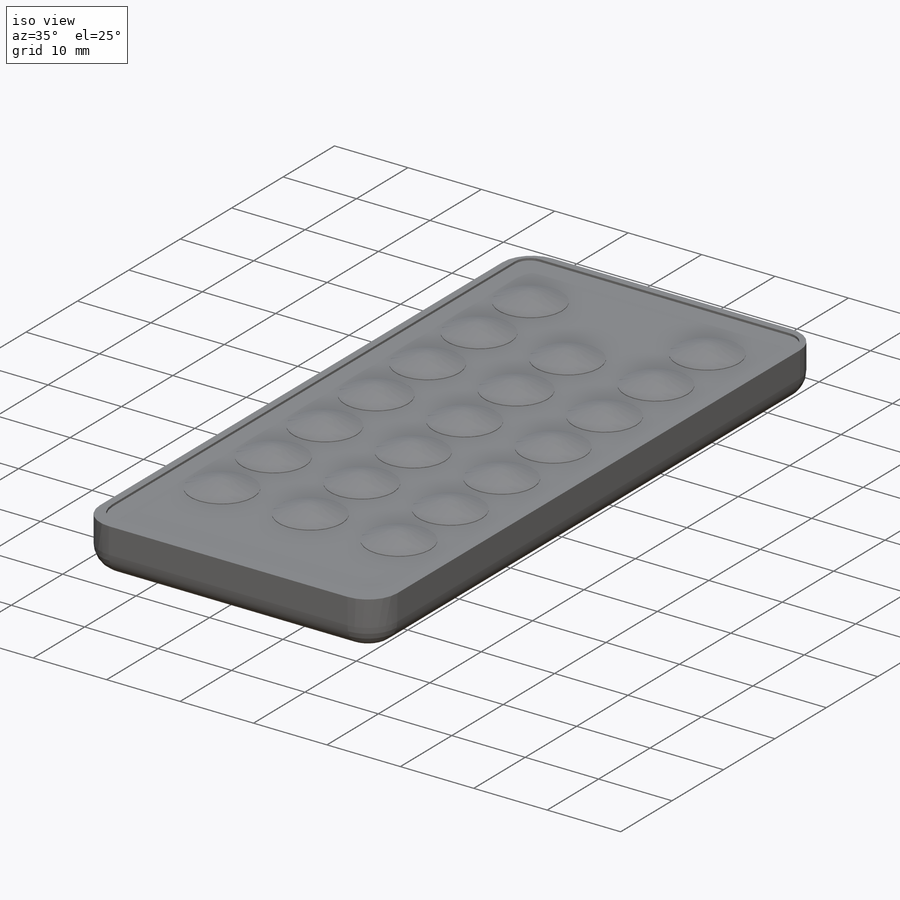
[diagram: iso view]
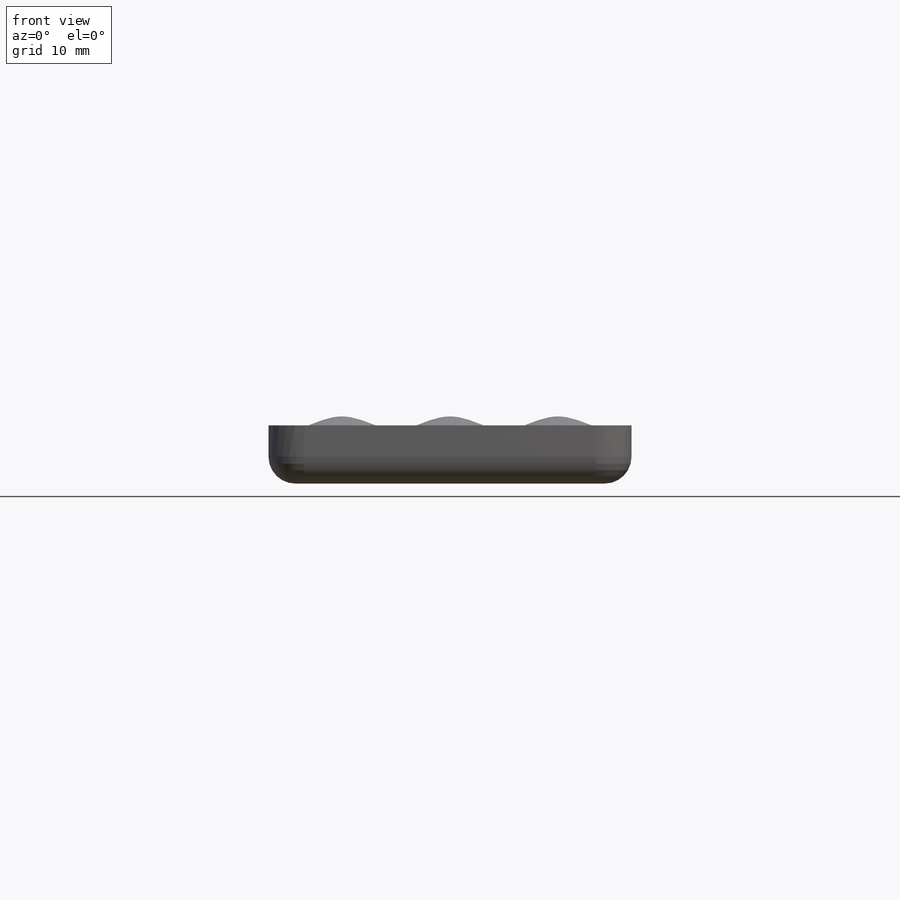
[diagram: front view]
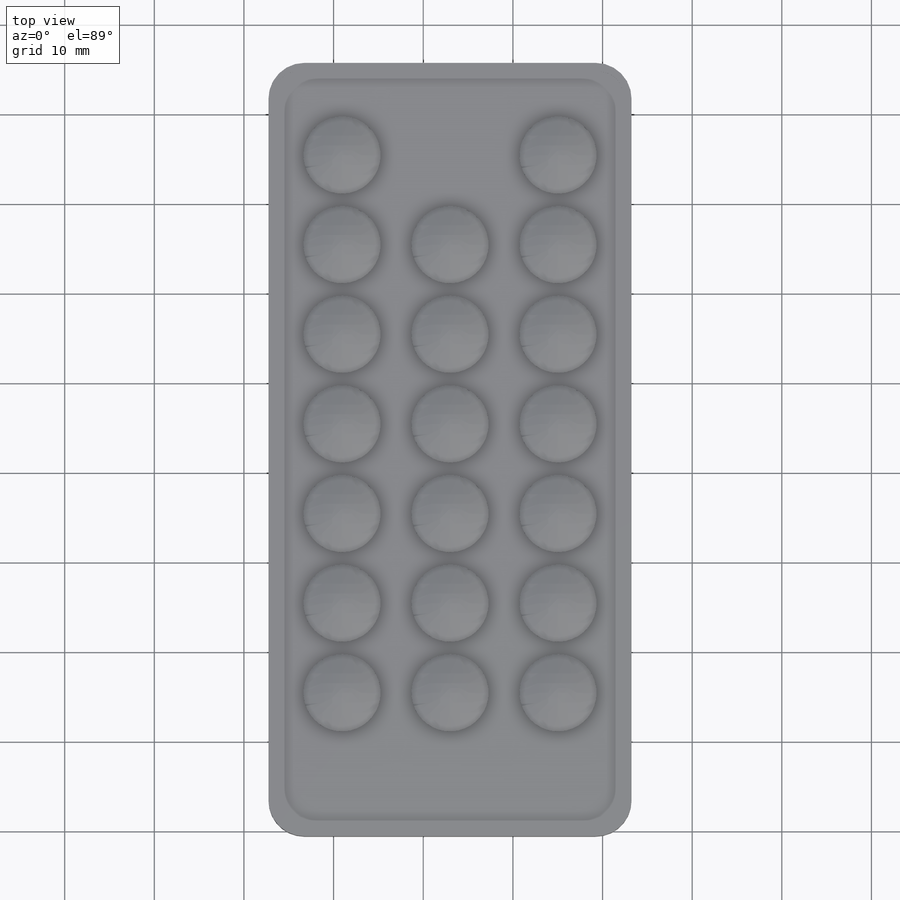
[diagram: top view]
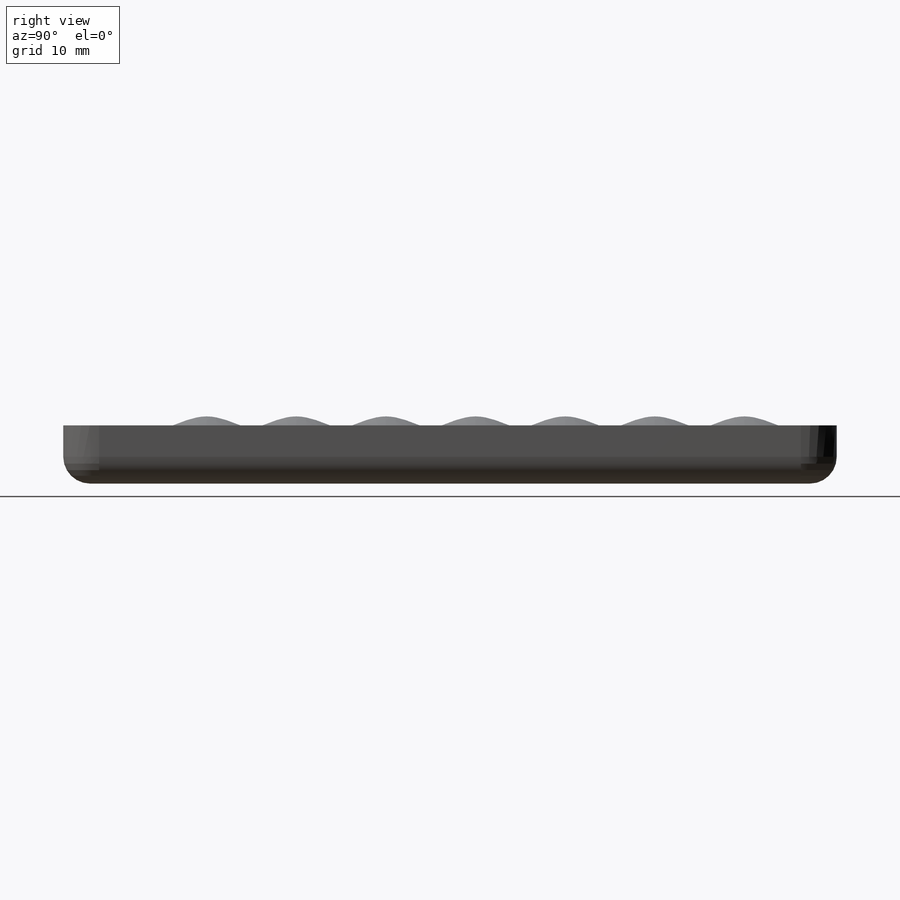
[diagram: right view]
SOLIDWORKS PART (.sldprt)
format: sldprt  version: not decoded by parser v0  size: 513,024 bytes
history: native  units: mm
features: sketch x3, extrude x2, fillet x2, material x1, cut_extrude x1, dome x1 (+12 scaffold rows collapsed)
feature tree (22):
  scaffold x12  (default folders/planes/origin — collapsed)
  material  "Material <not specified>"
  sketch  "Sketch1"  dims[D1=40.5mm D2=86.3mm]
  extrude  "Boss-Extrude1"  Depth=6.5mm
  fillet  "Fillet1"  Radius=4mm
  fillet  "Fillet2"  Radius=3mm
  sketch  "Sketch2"  dims[c1.D1=1.0mm c1.D2=1.0mm c1.D3=1.0mm c1.D4=1.0mm c2.D3=1.0mm c2.D4=1.0mm]
  cut_extrude  "Cut-Extrude2"  Depth=0.3mm
  sketch  "Sketch3"  dims[D1=8.6mm D4=7.2mm D5=9.3mm D6=7.2mm D2=3.0 D3=7.0]
  extrude  "Boss-Extrude2"  Depth=0.1mm
  dome  "Dome1"
decode coverage: 8 of 9 modeling features carry decoded parameters
note: suppression state not decoded; provenance and decode notes live in map.json
